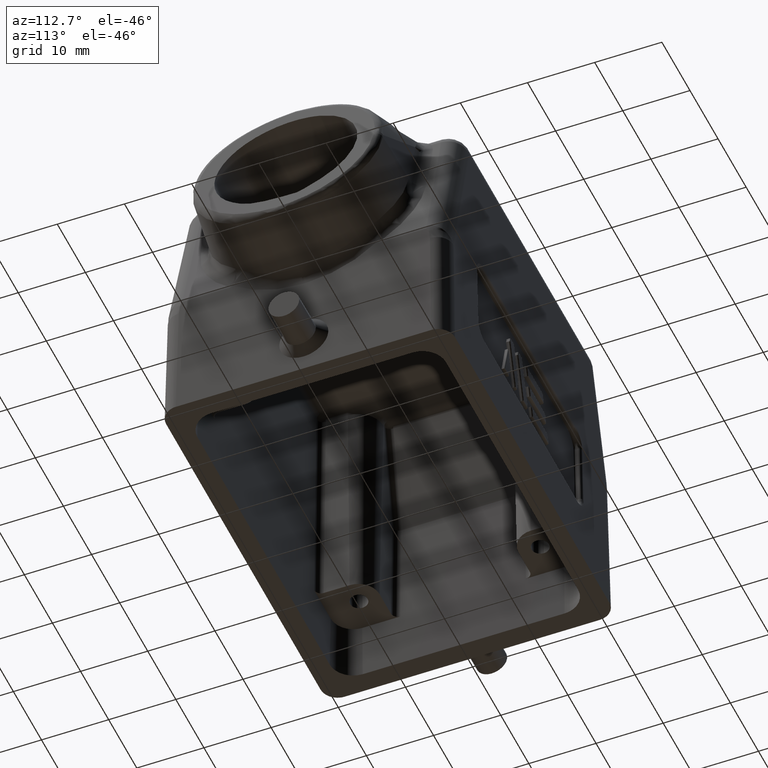
[diagram: clean part render]
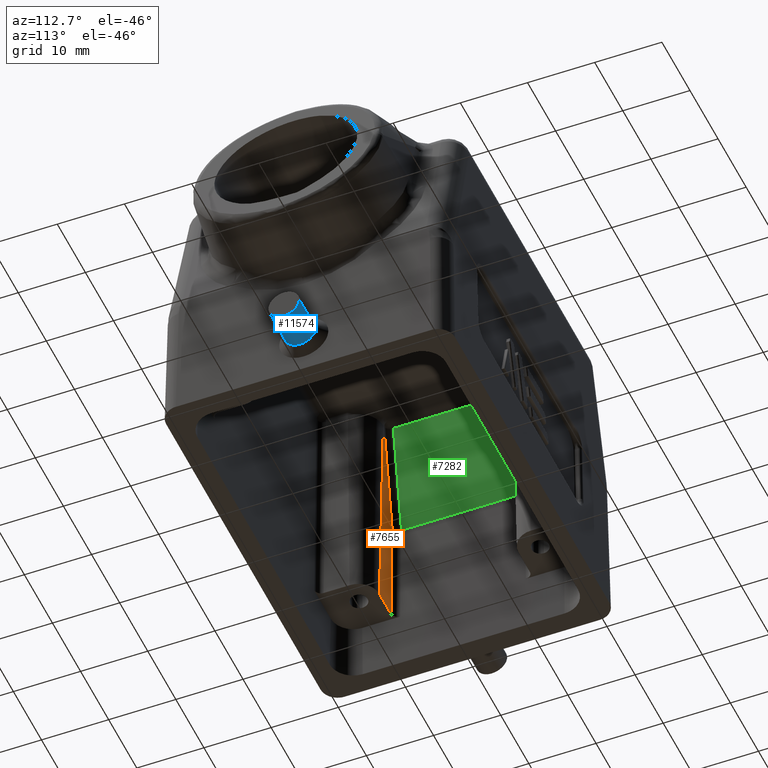
[diagram: same view with three faces highlighted in distinct colors, each labeled with its STEP entity id]
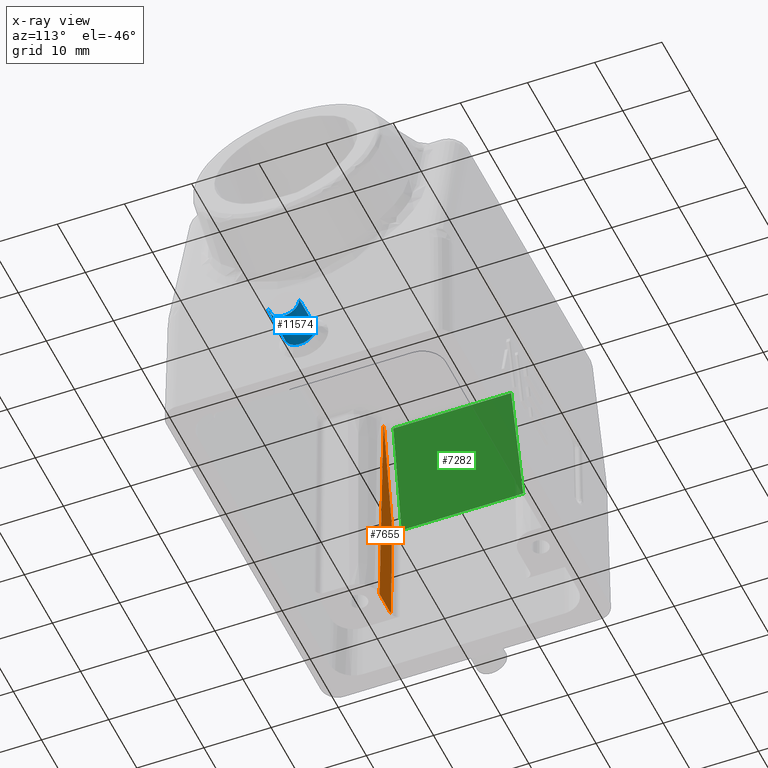
[diagram: x-ray of the same camera — body ghosted, the three highlighted faces saturated]
A machine part, auxiliary view with three faces highlighted in distinct colors.
The next image is the same camera in x-ray (body ghosted, the three faces saturated) — at least one of them is partly hidden behind the body in this view.
Their STEP definitions:

[orange] entity #7655 — the highlighted planar face has unit normal (0, -0.9998, 0.0175).
#254 = EDGE_CURVE ( 'NONE', #6218, #9458, #11800, .T. ) ;
#599 = CARTESIAN_POINT ( 'NONE',  ( 0.1829286508625161956, -0.3958235018653616377, 1.006144920028397616 ) ) ;
#1040 = CARTESIAN_POINT ( 'NONE',  ( 0.2716535433390377952, -0.4133858267716535861, 0.000000000000000000 ) ) ;
#1541 = EDGE_CURVE ( 'NONE', #6218, #3562, #2440, .T. ) ;
#1563 = ORIENTED_EDGE ( 'NONE', *, *, #3347, .T. ) ;
#2119 = CARTESIAN_POINT ( 'NONE',  ( 0.3307086614492599219, -0.4133858267716535861, 0.000000000000000000 ) ) ;
#2231 = CARTESIAN_POINT ( 'NONE',  ( 0.3307086614492599219, -0.4072009612459017713, 0.3543307086617037971 ) ) ;
#2440 = LINE ( 'NONE', #5385, #3431 ) ;
#2447 = EDGE_CURVE ( 'NONE', #4968, #10904, #3411, .T. ) ;
#3347 = EDGE_CURVE ( 'NONE', #10904, #3562, #4270, .T. ) ;
#3411 = LINE ( 'NONE', #5699, #13072 ) ;
#3431 = VECTOR ( 'NONE', #10277, 39.37007874015748854 ) ;
#3452 = VECTOR ( 'NONE', #12740, 39.37007874015748143 ) ;
#3562 = VERTEX_POINT ( 'NONE', #599 ) ;
#3613 = CARTESIAN_POINT ( 'NONE',  ( 0.1715511914819703998, -0.4072009612459069894, 0.3543307086614173596 ) ) ;
#3663 = EDGE_CURVE ( 'NONE', #4968, #9458, #11291, .T. ) ;
#3724 = CARTESIAN_POINT ( 'NONE',  ( 0.3238778674175690764, -0.3845111275640688553, 1.654230409702256654 ) ) ;
#4108 = PLANE ( 'NONE',  #4369 ) ;
#4270 = LINE ( 'NONE', #5017, #6468 ) ;
#4369 = AXIS2_PLACEMENT_3D ( 'NONE', #1040, #13160, #12218 ) ;
#4555 = DIRECTION ( 'NONE',  ( -1.000000000000000000, -0.000000000000000000, 0.000000000000000000 ) ) ;
#4968 = VERTEX_POINT ( 'NONE', #2231 ) ;
#5017 = CARTESIAN_POINT ( 'NONE',  ( 0.1654442439316009539, -0.4133079087962769349, 0.004463917819686554281 ) ) ;
#5385 = CARTESIAN_POINT ( 'NONE',  ( 0.3238778674175669114, -0.3845111275640687443, 1.654230409702256210 ) ) ;
#5699 = CARTESIAN_POINT ( 'NONE',  ( 0.2125984252288157517, -0.4072009612459055461, 0.3543307086614173596 ) ) ;
#5842 = CARTESIAN_POINT ( 'NONE',  ( 0.007874015748030354506, -0.3845111275640689108, 1.654230409702256210 ) ) ;
#6209 = DIRECTION ( 'NONE',  ( -0.000000000000000000, 0.01745240643728350471, 0.9998476951563912696 ) ) ;
#6218 = VERTEX_POINT ( 'NONE', #3724 ) ;
#6468 = VECTOR ( 'NONE', #7105, 39.37007874015748854 ) ;
#6669 = ORIENTED_EDGE ( 'NONE', *, *, #2447, .T. ) ;
#7105 = DIRECTION ( 'NONE',  ( 0.01744974916068260662, 0.01744974916068260662, 0.9996954598818874604 ) ) ;
#7404 = EDGE_LOOP ( 'NONE', ( #7868, #10374, #6669, #1563, #7610 ) ) ;
#7610 = ORIENTED_EDGE ( 'NONE', *, *, #1541, .F. ) ;
#7655 = ADVANCED_FACE ( 'NONE', ( #9081 ), #4108, .F. ) ;
#7868 = ORIENTED_EDGE ( 'NONE', *, *, #254, .T. ) ;
#9081 = FACE_OUTER_BOUND ( 'NONE', #7404, .T. ) ;
#9458 = VERTEX_POINT ( 'NONE', #13022 ) ;
#10277 = DIRECTION ( 'NONE',  ( -0.2124866563813044562, -0.01705386272989101518, -0.9770151414516989874 ) ) ;
#10374 = ORIENTED_EDGE ( 'NONE', *, *, #3663, .F. ) ;
#10904 = VERTEX_POINT ( 'NONE', #3613 ) ;
#11291 = LINE ( 'NONE', #2119, #13096 ) ;
#11800 = LINE ( 'NONE', #5842, #3452 ) ;
#12218 = DIRECTION ( 'NONE',  ( 0.000000000000000000, -0.01745240643728350471, -0.9998476951563912696 ) ) ;
#12740 = DIRECTION ( 'NONE',  ( 1.000000000000000000, -0.000000000000000000, -0.000000000000000000 ) ) ;
#13022 = CARTESIAN_POINT ( 'NONE',  ( 0.3307086614492599774, -0.3845111275723028244, 1.654230409702569737 ) ) ;
#13072 = VECTOR ( 'NONE', #4555, 39.37007874015748143 ) ;
#13096 = VECTOR ( 'NONE', #6209, 39.37007874015748143 ) ;
#13160 = DIRECTION ( 'NONE',  ( 0.000000000000000000, -0.9998476951563912696, 0.01745240643728350471 ) ) ;

[blue] entity #11574 — the highlighted conical surface has half-angle 0.5 deg.
#350 = CIRCLE ( 'NONE', #7188, 0.09251968503963503565 ) ;
#1358 = AXIS2_PLACEMENT_3D ( 'NONE', #8876, #1644, #5727 ) ;
#1644 = DIRECTION ( 'NONE',  ( -1.000000000000000000, 1.476360405087995973E-15, 0.000000000000000000 ) ) ;
#1895 = DIRECTION ( 'NONE',  ( 0.000000000000000000, 0.000000000000000000, -1.000000000000000000 ) ) ;
#1959 = DIRECTION ( 'NONE',  ( -1.000000000000000000, 0.000000000000000000, 0.000000000000000000 ) ) ;
#2432 = EDGE_CURVE ( 'NONE', #10043, #4032, #6118, .T. ) ;
#3118 = LINE ( 'NONE', #10160, #7109 ) ;
#3147 = DIRECTION ( 'NONE',  ( -0.9999619230642580181, 0.008726535488424601653, 1.068692375354316421E-18 ) ) ;
#3336 = AXIS2_PLACEMENT_3D ( 'NONE', #13163, #3713, #12021 ) ;
#3594 = EDGE_CURVE ( 'NONE', #11759, #5755, #3118, .T. ) ;
#3713 = DIRECTION ( 'NONE',  ( -1.000000000000000000, 1.476360405087995973E-15, 0.000000000000000000 ) ) ;
#3828 = EDGE_CURVE ( 'NONE', #12270, #5755, #8612, .T. ) ;
#3997 = DIRECTION ( 'NONE',  ( -0.9999619230642580181, -0.008726535488421649153, 0.000000000000000000 ) ) ;
#4032 = VERTEX_POINT ( 'NONE', #9392 ) ;
#4396 = EDGE_LOOP ( 'NONE', ( #4963, #4906, #13027, #13185, #12091 ) ) ;
#4602 = CARTESIAN_POINT ( 'NONE',  ( 2.645669291370461806, 0.09052693570356129538, 0.2362204724409449064 ) ) ;
#4738 = VECTOR ( 'NONE', #3147, 39.37007874015748143 ) ;
#4750 = DIRECTION ( 'NONE',  ( -1.000000000000000000, 0.000000000000000000, 0.000000000000000000 ) ) ;
#4876 = DIRECTION ( 'NONE',  ( 0.000000000000000000, 0.000000000000000000, -1.000000000000000000 ) ) ;
#4906 = ORIENTED_EDGE ( 'NONE', *, *, #5104, .T. ) ;
#4963 = ORIENTED_EDGE ( 'NONE', *, *, #2432, .F. ) ;
#5041 = CARTESIAN_POINT ( 'NONE',  ( 2.417322834674443754, 1.748382715945129927E-17, 0.2362204724409449064 ) ) ;
#5104 = EDGE_CURVE ( 'NONE', #10043, #11759, #5852, .T. ) ;
#5609 = AXIS2_PLACEMENT_3D ( 'NONE', #5041, #1959, #1895 ) ;
#5727 = DIRECTION ( 'NONE',  ( 0.000000000000000000, -1.000000000000000000, 0.000000000000000000 ) ) ;
#5755 = VERTEX_POINT ( 'NONE', #13206 ) ;
#5852 = CIRCLE ( 'NONE', #1358, 0.09052693570356162844 ) ;
#6118 = LINE ( 'NONE', #12330, #4738 ) ;
#6354 = CONICAL_SURFACE ( 'NONE', #3336, 0.09251968503928538479, 0.008726646250020458559 ) ;
#7109 = VECTOR ( 'NONE', #3997, 39.37007874015748143 ) ;
#7188 = AXIS2_PLACEMENT_3D ( 'NONE', #10974, #4750, #4876 ) ;
#8612 = CIRCLE ( 'NONE', #5609, 0.09251968503963503565 ) ;
#8876 = CARTESIAN_POINT ( 'NONE',  ( 2.645669291370461806, -3.196378401354741871E-16, 0.2362204724409449064 ) ) ;
#8952 = FACE_OUTER_BOUND ( 'NONE', #4396, .T. ) ;
#9001 = EDGE_CURVE ( 'NONE', #4032, #12270, #350, .T. ) ;
#9392 = CARTESIAN_POINT ( 'NONE',  ( 2.417322834674443754, 0.09251968503936351673, 0.2362204724409449064 ) ) ;
#10043 = VERTEX_POINT ( 'NONE', #4602 ) ;
#10160 = CARTESIAN_POINT ( 'NONE',  ( 2.417322834683395705, -0.09251968503928535703, 0.2362204724409449064 ) ) ;
#10736 = CARTESIAN_POINT ( 'NONE',  ( 2.645669291370461806, -0.09052693570356194763, 0.2362204724409449064 ) ) ;
#10974 = CARTESIAN_POINT ( 'NONE',  ( 2.417322834674443754, 1.748382715945129927E-17, 0.2362204724409449064 ) ) ;
#11574 = ADVANCED_FACE ( 'NONE', ( #8952 ), #6354, .T. ) ;
#11628 = CARTESIAN_POINT ( 'NONE',  ( 2.417322834674443754, 3.213589487035703604E-17, 0.1437007874013098430 ) ) ;
#11759 = VERTEX_POINT ( 'NONE', #10736 ) ;
#12021 = DIRECTION ( 'NONE',  ( 0.000000000000000000, -1.000000000000000000, 0.000000000000000000 ) ) ;
#12091 = ORIENTED_EDGE ( 'NONE', *, *, #9001, .F. ) ;
#12270 = VERTEX_POINT ( 'NONE', #11628 ) ;
#12330 = CARTESIAN_POINT ( 'NONE',  ( 2.417322834683395705, 0.09251968503928539866, 0.2362204724409449064 ) ) ;
#13027 = ORIENTED_EDGE ( 'NONE', *, *, #3594, .T. ) ;
#13163 = CARTESIAN_POINT ( 'NONE',  ( 2.417322834683395705, 1.748382715945129927E-17, 0.2362204724409449064 ) ) ;
#13185 = ORIENTED_EDGE ( 'NONE', *, *, #3828, .F. ) ;
#13206 = CARTESIAN_POINT ( 'NONE',  ( 2.417322834674443754, -0.09251968503936347510, 0.2362204724409449064 ) ) ;

[green] entity #7282 — the highlighted planar face has unit normal (-0.9772, 0, 0.2125).
#79 = DIRECTION ( 'NONE',  ( 0.000000000000000000, 1.000000000000000000, -0.000000000000000000 ) ) ;
#112 = AXIS2_PLACEMENT_3D ( 'NONE', #6152, #11230, #7225 ) ;
#374 = VERTEX_POINT ( 'NONE', #10116 ) ;
#698 = VECTOR ( 'NONE', #9461, 39.37007874015748854 ) ;
#1027 = ORIENTED_EDGE ( 'NONE', *, *, #7178, .F. ) ;
#1053 = PLANE ( 'NONE',  #112 ) ;
#1068 = EDGE_CURVE ( 'NONE', #7623, #374, #1504, .T. ) ;
#1504 = LINE ( 'NONE', #11684, #8155 ) ;
#1794 = VECTOR ( 'NONE', #4485, 39.37007874015748143 ) ;
#1891 = VERTEX_POINT ( 'NONE', #11106 ) ;
#2220 = EDGE_LOOP ( 'NONE', ( #10259, #8248, #6941, #12217, #1027, #7525 ) ) ;
#2340 = CARTESIAN_POINT ( 'NONE',  ( 0.1436323627330318986, 0.3563916250219049675, 1.010028856139015829 ) ) ;
#2350 = EDGE_CURVE ( 'NONE', #7686, #12880, #12765, .T. ) ;
#3326 = EDGE_CURVE ( 'NONE', #1891, #7623, #11305, .T. ) ;
#3511 = DIRECTION ( 'NONE',  ( -0.2124866563813050113, 0.01705386272989097701, -0.9770151414516989874 ) ) ;
#3980 = CARTESIAN_POINT ( 'NONE',  ( 0.2854071096547919351, 0.3451470450775885879, 1.661910140248811230 ) ) ;
#4006 = EDGE_CURVE ( 'NONE', #12880, #1891, #4159, .T. ) ;
#4159 = LINE ( 'NONE', #8534, #698 ) ;
#4485 = DIRECTION ( 'NONE',  ( 0.000000000000000000, 1.000000000000000000, -0.000000000000000000 ) ) ;
#4914 = CARTESIAN_POINT ( 'NONE',  ( 0.1436323627330318986, -0.3563916250219015258, 1.010028856139016940 ) ) ;
#5034 = CARTESIAN_POINT ( 'NONE',  ( 0.1436323627330320929, -0.3563916250219015813, 1.010028856139015607 ) ) ;
#5071 = FACE_OUTER_BOUND ( 'NONE', #2220, .T. ) ;
#5144 = CARTESIAN_POINT ( 'NONE',  ( 0.2854071096547919351, 0.000000000000000000, 1.661910140248811230 ) ) ;
#5829 = EDGE_CURVE ( 'NONE', #7686, #11006, #12658, .T. ) ;
#6152 = CARTESIAN_POINT ( 'NONE',  ( 0.1411557716329055190, 0.000000000000000000, 0.9986414728312087430 ) ) ;
#6720 = CARTESIAN_POINT ( 'NONE',  ( 0.1436326108225664533, -0.3565256553059263922, 1.010029996856440793 ) ) ;
#6941 = ORIENTED_EDGE ( 'NONE', *, *, #2350, .F. ) ;
#7178 = EDGE_CURVE ( 'NONE', #374, #11006, #8835, .T. ) ;
#7225 = DIRECTION ( 'NONE',  ( 0.2125175623198200525, 0.000000000000000000, 0.9771572471744971455 ) ) ;
#7282 = ADVANCED_FACE ( 'NONE', ( #5071 ), #1053, .F. ) ;
#7525 = ORIENTED_EDGE ( 'NONE', *, *, #1068, .F. ) ;
#7623 = VERTEX_POINT ( 'NONE', #3980 ) ;
#7686 = VERTEX_POINT ( 'NONE', #4914 ) ;
#8155 = VECTOR ( 'NONE', #3511, 39.37007874015748854 ) ;
#8248 = ORIENTED_EDGE ( 'NONE', *, *, #4006, .F. ) ;
#8534 = CARTESIAN_POINT ( 'NONE',  ( 0.1436326108225665088, -0.3565256553059263922, 1.010029996856440793 ) ) ;
#8835 = LINE ( 'NONE', #11966, #10568 ) ;
#9461 = DIRECTION ( 'NONE',  ( 0.2124866563813050113, 0.01705386272989097701, 0.9770151414516989874 ) ) ;
#9586 = CARTESIAN_POINT ( 'NONE',  ( 0.1436323627330317876, 0.000000000000000000, 1.010028856139015829 ) ) ;
#9880 = DIRECTION ( 'NONE',  ( 0.001850925904780617408, -0.9999620714136308042, 0.008510570336682494672 ) ) ;
#10116 = CARTESIAN_POINT ( 'NONE',  ( 0.1436326108225658982, 0.3565256553059263922, 1.010029996856437906 ) ) ;
#10259 = ORIENTED_EDGE ( 'NONE', *, *, #3326, .F. ) ;
#10509 = VECTOR ( 'NONE', #9880, 39.37007874015748854 ) ;
#10568 = VECTOR ( 'NONE', #11905, 39.37007874015748854 ) ;
#11006 = VERTEX_POINT ( 'NONE', #2340 ) ;
#11106 = CARTESIAN_POINT ( 'NONE',  ( 0.2854071096547917685, -0.3451470450775967480, 1.661910140248812340 ) ) ;
#11230 = DIRECTION ( 'NONE',  ( -0.9771572471744972566, 0.000000000000000000, 0.2125175623198200803 ) ) ;
#11305 = LINE ( 'NONE', #5144, #13087 ) ;
#11684 = CARTESIAN_POINT ( 'NONE',  ( 0.2854071096547919351, 0.3451470450775968035, 1.661910140248811230 ) ) ;
#11905 = DIRECTION ( 'NONE',  ( -0.001850925904780617408, -0.9999620714136308042, -0.008510570336682494672 ) ) ;
#11966 = CARTESIAN_POINT ( 'NONE',  ( 0.1436326108225665088, 0.3565256553059263922, 1.010029996856440793 ) ) ;
#12217 = ORIENTED_EDGE ( 'NONE', *, *, #5829, .T. ) ;
#12658 = LINE ( 'NONE', #9586, #1794 ) ;
#12765 = LINE ( 'NONE', #5034, #10509 ) ;
#12880 = VERTEX_POINT ( 'NONE', #6720 ) ;
#13087 = VECTOR ( 'NONE', #79, 39.37007874015748143 ) ;